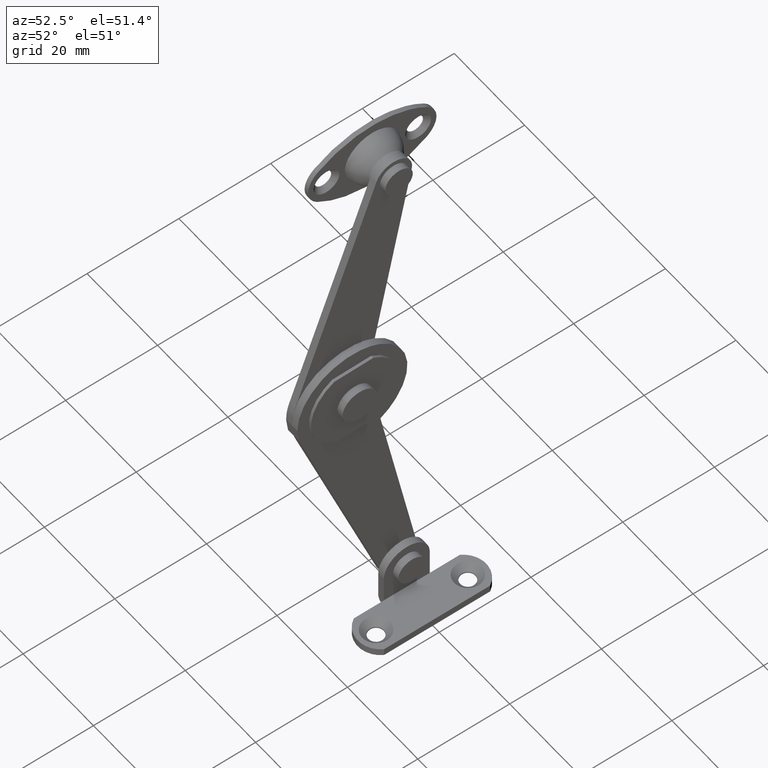
[diagram: clean part render]
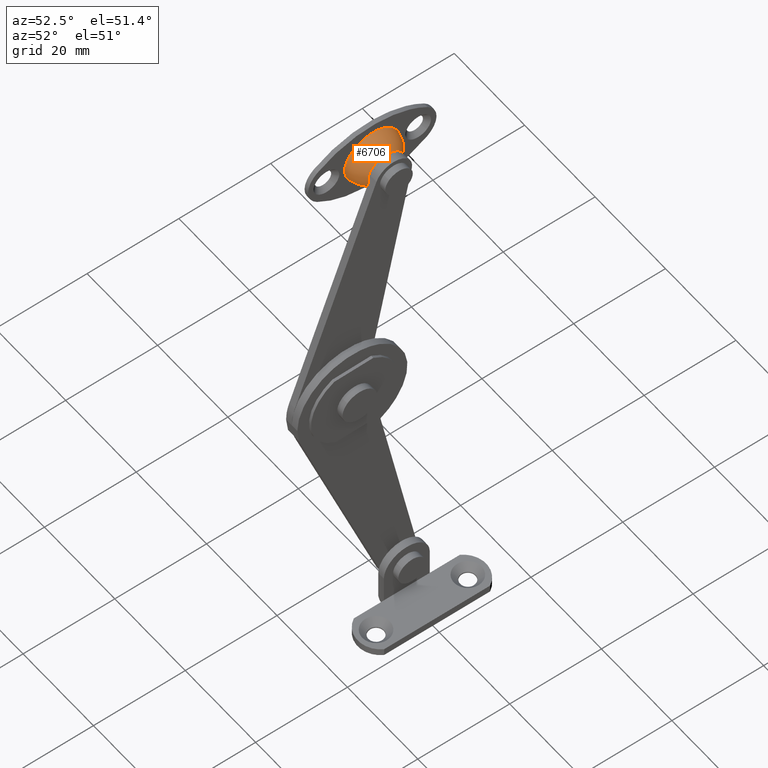
[diagram: same view with one face highlighted and labeled with its STEP entity id]
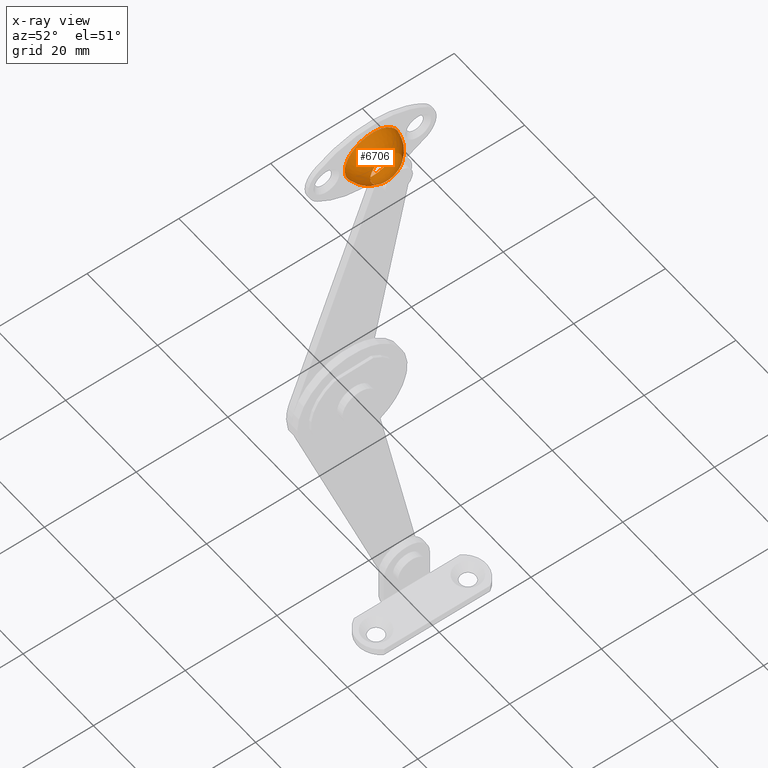
[diagram: x-ray of the same camera — body ghosted, the highlighted face saturated]
A machine part, auxiliary view. The second image highlights one B-rep face of the part: STEP entity #6706.
The next image is the same camera in x-ray: the body ghosted, the highlighted face saturated — about 0% of this face is hidden behind the body in this view.
In plain terms, the highlighted face is a freeform B-spline surface patch.
Its self-contained STEP definition (entity closure, byte-faithful):
#6543=CARTESIAN_POINT('',(5.000000000000091,0.0,55.500000000000917));
#6544=VERTEX_POINT('',#6543);
#6545=CARTESIAN_POINT('',(5.000000000000091,-3.499999999999250,51.999997993448112));
#6546=VERTEX_POINT('',#6545);
#6547=CARTESIAN_POINT('',(5.000000000000091,0.0,55.500000000000917));
#6548=CARTESIAN_POINT('',(5.000000000000086,-0.286334327918268,55.500038624755661));
#6549=CARTESIAN_POINT('',(5.000000000000101,-0.944966589389520,55.418859631469410));
#6550=CARTESIAN_POINT('',(5.000000000000087,-1.771225789408643,55.064737778145009));
#6551=CARTESIAN_POINT('',(5.000000000000100,-2.428943875232390,54.551177306928103));
#6552=CARTESIAN_POINT('',(5.000000000000084,-2.879999729470722,54.028324877435807));
#6553=CARTESIAN_POINT('',(5.000000000000093,-3.206168919040651,53.452518692431461));
#6554=CARTESIAN_POINT('',(5.000000000000093,-3.439920172027061,52.773094431544628));
#6555=CARTESIAN_POINT('',(5.000000000000087,-3.500068594568475,52.286345526276961));
#6556=CARTESIAN_POINT('',(5.000000000000091,-3.499999999999250,51.999997993448112));
#6557=B_SPLINE_CURVE_WITH_KNOTS('',3,(#6547,#6548,#6549,#6550,#6551,#6552,#6553,#6554,#6555,#6556),.UNSPECIFIED.,.F.,.U.,(4,1,1,1,1,1,1,4),(0.000000066924374,0.859046076551147,1.975823567658007,2.663062424758934,3.350290171011736,4.037539429227139,4.638880227437005,5.497926236125142),.UNSPECIFIED.);
#6558=EDGE_CURVE('',#6544,#6546,#6557,.T.);
#6560=CARTESIAN_POINT('',(5.000000000000091,0.0,48.500000000001279));
#6561=VERTEX_POINT('',#6560);
#6562=CARTESIAN_POINT('',(5.000000000000091,-3.499999999999250,51.999997993448112));
#6563=CARTESIAN_POINT('',(5.000000000000092,-3.500092237673814,51.685016046490439));
#6564=CARTESIAN_POINT('',(5.000000000000088,-3.410536886368099,51.026452189827289));
#6565=CARTESIAN_POINT('',(5.000000000000099,-3.070457029112100,50.259026400332381));
#6566=CARTESIAN_POINT('',(5.000000000000085,-2.625603465722892,49.659492984664830));
#6567=CARTESIAN_POINT('',(5.000000000000100,-2.167205160691035,49.222986591096571));
#6568=CARTESIAN_POINT('',(5.000000000000101,-1.632396503534926,48.884367145316723));
#6569=CARTESIAN_POINT('',(5.000000000000080,-0.916184838793370,48.587656070611907));
#6570=CARTESIAN_POINT('',(5.000000000000109,-0.372280336209615,48.499768734367862));
#6571=CARTESIAN_POINT('',(5.000000000000091,0.0,48.500000000001279));
#6572=B_SPLINE_CURVE_WITH_KNOTS('',3,(#6562,#6563,#6564,#6565,#6566,#6567,#6568,#6569,#6570,#6571),.UNSPECIFIED.,.F.,.U.,(4,1,1,1,1,1,1,4),(0.000000069666122,0.944952087740157,1.975822755618673,2.491255845185965,3.178477394534578,3.865726374178868,4.381159620892639,5.497923974215863),.UNSPECIFIED.);
#6573=EDGE_CURVE('',#6546,#6561,#6572,.T.);
#6575=CARTESIAN_POINT('',(5.000000000000090,3.499999999999250,52.000002006554098));
#6576=VERTEX_POINT('',#6575);
#6577=CARTESIAN_POINT('',(5.000000000000091,0.0,48.500000000001279));
#6578=CARTESIAN_POINT('',(5.000000000000083,0.372277416401436,48.499803196588083));
#6579=CARTESIAN_POINT('',(5.000000000000102,0.916187297814845,48.587626474265782));
#6580=CARTESIAN_POINT('',(5.000000000000088,1.632397955023983,48.884374529620828));
#6581=CARTESIAN_POINT('',(5.000000000000091,2.167201829468177,49.222991825583883));
#6582=CARTESIAN_POINT('',(5.000000000000087,2.625629953149849,49.659482977050551));
#6583=CARTESIAN_POINT('',(5.000000000000097,3.001876190541594,50.166850913327437));
#6584=CARTESIAN_POINT('',(5.000000000000068,3.377251987316190,50.912110909766639));
#6585=CARTESIAN_POINT('',(5.000000000000121,3.500323682858698,51.570434051865952));
#6586=CARTESIAN_POINT('',(5.000000000000090,3.499999999999250,52.000002006554098));
#6587=B_SPLINE_CURVE_WITH_KNOTS('',3,(#6577,#6578,#6579,#6580,#6581,#6582,#6583,#6584,#6585,#6586),.UNSPECIFIED.,.F.,.U.,(4,1,1,1,1,1,1,4),(0.000000066926980,1.116764879888306,1.632198338854107,2.319447601120117,3.006669435142464,3.522102737151621,4.209349958810433,5.497926236125146),.UNSPECIFIED.);
#6588=EDGE_CURVE('',#6561,#6576,#6587,.T.);
#6590=CARTESIAN_POINT('',(5.000000000000090,3.499999999999250,52.000002006554098));
#6591=CARTESIAN_POINT('',(5.000000000000103,3.500227217156644,52.372280229389297));
#6592=CARTESIAN_POINT('',(5.000000000000069,3.403102864004084,52.973446551030321));
#6593=CARTESIAN_POINT('',(5.000000000000113,3.064936172701616,53.736276051070760));
#6594=CARTESIAN_POINT('',(5.000000000000070,2.667318494417781,54.300843376772228));
#6595=CARTESIAN_POINT('',(5.000000000000083,2.167193908718895,54.777005671829322));
#6596=CARTESIAN_POINT('',(5.000000000000112,1.559488771624098,55.161852614263267));
#6597=CARTESIAN_POINT('',(5.000000000000068,0.830365360861870,55.432864935739147));
#6598=CARTESIAN_POINT('',(5.000000000000116,0.286347628181405,55.500065400978102));
#6599=CARTESIAN_POINT('',(5.000000000000091,0.0,55.500000000000917));
#6600=B_SPLINE_CURVE_WITH_KNOTS('',3,(#6590,#6591,#6592,#6593,#6594,#6595,#6596,#6597,#6598,#6599),.UNSPECIFIED.,.F.,.U.,(4,1,1,1,1,1,1,4),(0.000000069672221,1.116764422384261,1.804010003398531,2.491255845189519,3.178477394537212,3.865726374180690,4.638878317884730,5.497923974215875),.UNSPECIFIED.);
#6601=EDGE_CURVE('',#6576,#6544,#6600,.T.);
#6614=CARTESIAN_POINT('',(-1.411552524445771,-4.174733371004250,47.825266628996843));
#6615=CARTESIAN_POINT('',(0.664454608053768,-3.022314034264122,45.955371931472854));
#6616=CARTESIAN_POINT('',(0.664454608053812,3.022314034264112,45.955371931472854));
#6617=CARTESIAN_POINT('',(-1.411552524445710,4.174733371004273,47.825266628996843));
#6618=CARTESIAN_POINT('',(0.664454608053767,-6.044628068528239,48.977685965736974));
#6619=CARTESIAN_POINT('',(6.108953230867610,-5.474289980324269,46.525710019676843));
#6620=CARTESIAN_POINT('',(6.108953230867692,5.474289980324180,46.525710019676843));
#6621=CARTESIAN_POINT('',(0.664454608053854,6.044628068528228,48.977685965736974));
#6622=CARTESIAN_POINT('',(0.664454608053810,-6.044628068528239,55.022314034265207));
#6623=CARTESIAN_POINT('',(6.108953230867688,-5.474289980324269,57.474289980325281));
#6624=CARTESIAN_POINT('',(6.108953230867770,5.474289980324180,57.474289980325281));
#6625=CARTESIAN_POINT('',(0.664454608053898,6.044628068528228,55.022314034265207));
#6626=CARTESIAN_POINT('',(-1.411552524445713,-4.174733371004250,56.174733371005360));
#6627=CARTESIAN_POINT('',(0.664454608053852,-3.022314034264122,58.044628068529320));
#6628=CARTESIAN_POINT('',(0.664454608053897,3.022314034264112,58.044628068529320));
#6629=CARTESIAN_POINT('',(-1.411552524445652,4.174733371004273,56.174733371005360));
#6637=(BOUNDED_SURFACE()B_SPLINE_SURFACE(2,2,((#6614,#6618,#6622,#6626),(#6615,#6619,#6623,#6627),(#6616,#6620,#6624,#6628),(#6617,#6621,#6625,#6629)),.UNSPECIFIED.,.F.,.F.,.U.)B_SPLINE_SURFACE_WITH_KNOTS((3,1,3),(3,1,3),(0.0,7.789005304593777,15.578010609187560),(0.0,7.789005304593789,15.578010609187579),.UNSPECIFIED.)GEOMETRIC_REPRESENTATION_ITEM()RATIONAL_B_SPLINE_SURFACE(((2.622581848386330,1.811290924193165,1.811290924193165,2.622581848386330),(1.811290924193165,1.0,1.0,1.811290924193165),(1.811290924193165,1.0,1.0,1.811290924193165),(2.622581848386330,1.811290924193165,1.811290924193165,2.622581848386330)))REPRESENTATION_ITEM('')SURFACE());
#6638=CARTESIAN_POINT('',(0.999999999999972,0.0,58.000000000001101));
#6639=VERTEX_POINT('',#6638);
#6640=CARTESIAN_POINT('',(0.999999999999972,-5.999999999999805,51.999998468695580));
#6641=VERTEX_POINT('',#6640);
#6642=CARTESIAN_POINT('',(0.999999999999972,0.0,58.000000000001101));
#6643=CARTESIAN_POINT('',(0.999999999999969,-0.613637364207816,58.000329574871500));
#6644=CARTESIAN_POINT('',(0.999999999999979,-1.496996652638891,57.863216404181877));
#6645=CARTESIAN_POINT('',(0.999999999999970,-2.825078674925159,57.341611668721079));
#6646=CARTESIAN_POINT('',(0.999999999999971,-3.821566400384310,56.693315677909183));
#6647=CARTESIAN_POINT('',(0.999999999999974,-4.728045478947161,55.752633481542802));
#6648=CARTESIAN_POINT('',(0.999999999999971,-5.427519269257446,54.677721858681480));
#6649=CARTESIAN_POINT('',(0.999999999999973,-5.893893666398084,53.398994554477113));
#6650=CARTESIAN_POINT('',(0.999999999999973,-6.000053978105744,52.441781203784537));
#6651=CARTESIAN_POINT('',(0.999999999999972,-5.999999999999805,51.999998468695580));
#6652=B_SPLINE_CURVE_WITH_KNOTS('',3,(#6642,#6643,#6644,#6645,#6646,#6647,#6648,#6649,#6650,#6651),.UNSPECIFIED.,.F.,.U.,(4,1,1,1,1,1,1,4),(0.000000141350441,1.840777737837580,2.650742388327242,4.270633276007290,5.375102507777648,6.553196103334954,8.099478273525193,9.424837960336857),.UNSPECIFIED.);
#6653=EDGE_CURVE('',#6639,#6641,#6652,.T.);
#6654=ORIENTED_EDGE('',*,*,#6653,.T.);
#6655=CARTESIAN_POINT('',(0.999999999999972,0.0,46.000000000001101));
#6656=VERTEX_POINT('',#6655);
#6657=CARTESIAN_POINT('',(0.999999999999972,-5.999999999999805,51.999998468695580));
#6658=CARTESIAN_POINT('',(0.999999999999974,-6.000186313953558,51.460024146962120));
#6659=CARTESIAN_POINT('',(0.999999999999971,-5.873202859911974,50.527465977770220));
#6660=CARTESIAN_POINT('',(0.999999999999970,-5.385042970997529,49.261924494488369));
#6661=CARTESIAN_POINT('',(0.999999999999982,-4.745180456063406,48.265086058601611));
#6662=CARTESIAN_POINT('',(0.999999999999971,-3.855745245340073,47.342228553640290));
#6663=CARTESIAN_POINT('',(0.999999999999955,-2.807139824012662,46.641539315173148));
#6664=CARTESIAN_POINT('',(0.999999999999991,-1.472530826204114,46.126796578375327));
#6665=CARTESIAN_POINT('',(0.999999999999960,-0.539972597781305,45.999817206615901));
#6666=CARTESIAN_POINT('',(0.999999999999972,0.0,46.000000000001101));
#6667=B_SPLINE_CURVE_WITH_KNOTS('',3,(#6657,#6658,#6659,#6660,#6661,#6662,#6663,#6664,#6665,#6666),.UNSPECIFIED.,.F.,.U.,(4,1,1,1,1,1,1,4),(0.000000141877875,1.619877566119827,2.798003167630630,4.049736475891298,5.154205064735058,6.626834200157960,7.804959201265074,9.424836234187900),.UNSPECIFIED.);
#6668=EDGE_CURVE('',#6641,#6656,#6667,.T.);
#6669=ORIENTED_EDGE('',*,*,#6668,.T.);
#6670=CARTESIAN_POINT('',(0.999999999999972,5.999999999999805,52.000001531306673));
#6671=VERTEX_POINT('',#6670);
#6672=CARTESIAN_POINT('',(0.999999999999972,0.0,46.000000000001101));
#6673=CARTESIAN_POINT('',(0.999999999999971,0.466318933828663,45.999945834837831));
#6674=CARTESIAN_POINT('',(0.999999999999975,1.497174719004077,46.120630707836909));
#6675=CARTESIAN_POINT('',(0.999999999999967,2.904621195318021,46.673430119729403));
#6676=CARTESIAN_POINT('',(0.999999999999981,4.021056281923923,47.491100568729017));
#6677=CARTESIAN_POINT('',(0.999999999999968,4.748919931192436,48.294256062925662));
#6678=CARTESIAN_POINT('',(0.999999999999973,5.276984153999464,49.095220127760967));
#6679=CARTESIAN_POINT('',(0.999999999999972,5.820973044745744,50.282199004903042));
#6680=CARTESIAN_POINT('',(0.999999999999972,6.000424092084393,51.312713796560693));
#6681=CARTESIAN_POINT('',(0.999999999999972,5.999999999999805,52.000001531306673));
#6682=B_SPLINE_CURVE_WITH_KNOTS('',3,(#6672,#6673,#6674,#6675,#6676,#6677,#6678,#6679,#6680,#6681),.UNSPECIFIED.,.F.,.U.,(4,1,1,1,1,1,1,4),(0.000000141348893,1.398978212387662,3.092541690804272,4.491527525606201,5.522336587732253,6.332296377356142,7.363161022401371,9.424837960336882),.UNSPECIFIED.);
#6683=EDGE_CURVE('',#6656,#6671,#6682,.T.);
#6684=ORIENTED_EDGE('',*,*,#6683,.T.);
#6685=CARTESIAN_POINT('',(0.999999999999972,5.999999999999805,52.000001531306673));
#6686=CARTESIAN_POINT('',(0.999999999999973,6.000332206835004,52.613636645610761));
#6687=CARTESIAN_POINT('',(0.999999999999971,5.851794896706609,53.570621859731517));
#6688=CARTESIAN_POINT('',(0.999999999999972,5.276784672207882,54.959017747640672));
#6689=CARTESIAN_POINT('',(0.999999999999969,4.549479671242924,55.991728900585237));
#6690=CARTESIAN_POINT('',(0.999999999999970,3.576070336585243,56.862984814835912));
#6691=CARTESIAN_POINT('',(0.999999999999977,2.708785919789060,57.382800640450782));
#6692=CARTESIAN_POINT('',(0.999999999999964,1.521520385590288,57.857659449039247));
#6693=CARTESIAN_POINT('',(1.000000000000005,0.638199677303697,58.000399546480672));
#6694=CARTESIAN_POINT('',(0.999999999999972,0.0,58.000000000001101));
#6695=B_SPLINE_CURVE_WITH_KNOTS('',3,(#6685,#6686,#6687,#6688,#6689,#6690,#6691,#6692,#6693,#6694),.UNSPECIFIED.,.F.,.U.,(4,1,1,1,1,1,1,4),(0.000000141883081,1.840777401130917,2.871641637787882,4.491526701178182,5.595993479953740,6.774094744955578,7.510420218183981,9.424836234187676),.UNSPECIFIED.);
#6696=EDGE_CURVE('',#6671,#6639,#6695,.T.);
#6697=ORIENTED_EDGE('',*,*,#6696,.T.);
#6698=EDGE_LOOP('',(#6654,#6669,#6684,#6697));
#6699=FACE_OUTER_BOUND('',#6698,.T.);
#6700=ORIENTED_EDGE('',*,*,#6558,.F.);
#6701=ORIENTED_EDGE('',*,*,#6601,.F.);
#6702=ORIENTED_EDGE('',*,*,#6588,.F.);
#6703=ORIENTED_EDGE('',*,*,#6573,.F.);
#6704=EDGE_LOOP('',(#6700,#6701,#6702,#6703));
#6705=FACE_BOUND('',#6704,.T.);
#6706=ADVANCED_FACE('',(#6699,#6705),#6637,.T.);